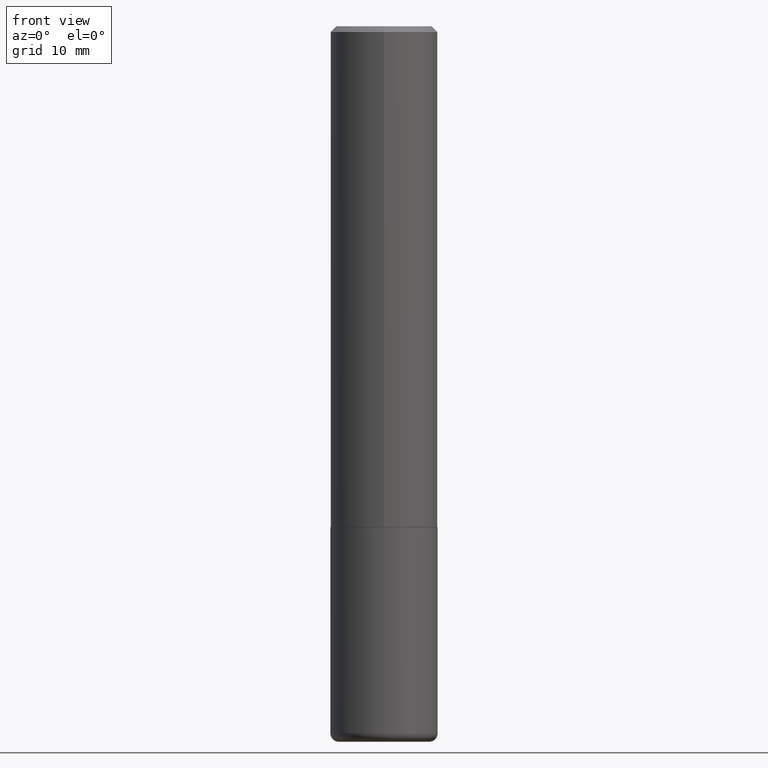
[diagram: clean part render]
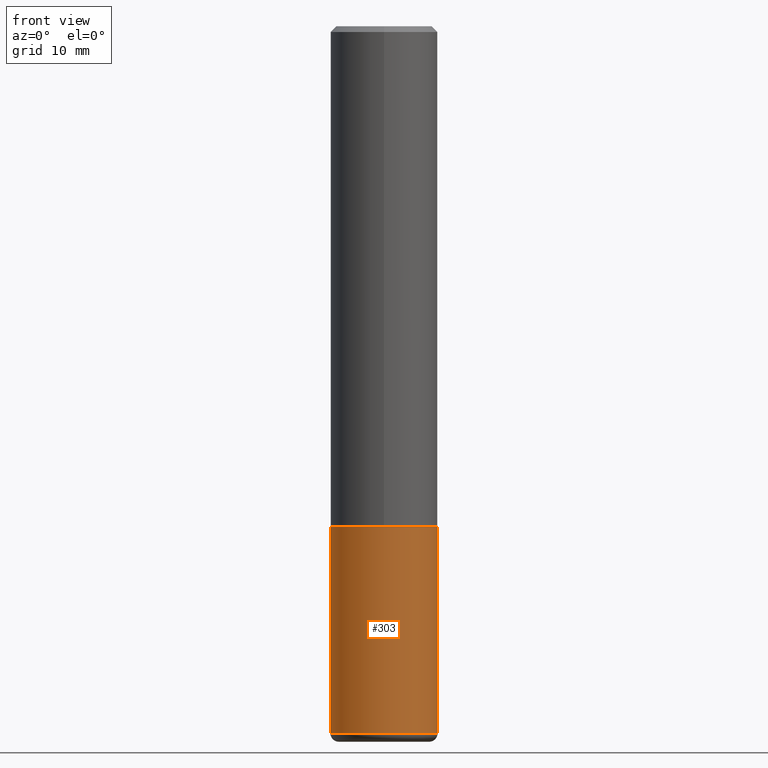
[diagram: same view with one face highlighted and labeled with its STEP entity id]
A machine part, front view. The second image highlights one B-rep face of the part: STEP entity #303.
In plain terms, the highlighted cylindrical surface (partial cylindrical patch) has radius 4.7625 mm, axis along (-0, 0, 1).
Its self-contained STEP definition (entity closure, byte-faithful):
#10 = CARTESIAN_POINT ( 'NONE',  ( 0.1875000000000000555, -9.933264409008746581E-15, -2.470000000000000195 ) ) ;
#17 = DIRECTION ( 'NONE',  ( -2.445468806185136597E-29, 3.491481338843145583E-15, 1.000000000000000000 ) ) ;
#20 = AXIS2_PLACEMENT_3D ( 'NONE', #359, #351, #259 ) ;
#32 = EDGE_CURVE ( 'NONE', #112, #409, #171, .T. ) ;
#39 = AXIS2_PLACEMENT_3D ( 'NONE', #113, #17, #239 ) ;
#44 = ORIENTED_EDGE ( 'NONE', *, *, #32, .F. ) ;
#54 = LINE ( 'NONE', #162, #238 ) ;
#67 = DIRECTION ( 'NONE',  ( -2.445468806185136877E-29, 3.491481338843145188E-15, 1.000000000000000000 ) ) ;
#75 = CARTESIAN_POINT ( 'NONE',  ( 0.000000000000000000, 0.000000000000000000, 0.000000000000000000 ) ) ;
#83 = EDGE_CURVE ( 'NONE', #207, #409, #54, .T. ) ;
#85 = ORIENTED_EDGE ( 'NONE', *, *, #379, .T. ) ;
#88 = VERTEX_POINT ( 'NONE', #290 ) ;
#100 = VECTOR ( 'NONE', #67, 39.37007874015748143 ) ;
#112 = VERTEX_POINT ( 'NONE', #294 ) ;
#113 = CARTESIAN_POINT ( 'NONE',  ( 6.040307951277287977E-29, -8.623958906942569995E-15, -2.470000000000000195 ) ) ;
#144 = CARTESIAN_POINT ( 'NONE',  ( 0.1875000000000000278, -7.419397845041680468E-15, -1.750000000000000222 ) ) ;
#154 = DIRECTION ( 'NONE',  ( -2.445468806185136877E-29, 3.491481338843145188E-15, 1.000000000000000000 ) ) ;
#162 = CARTESIAN_POINT ( 'NONE',  ( 0.1875000000000000555, -1.309305502066175205E-15, 9.142831454617382414E-30 ) ) ;
#171 = CIRCLE ( 'NONE', #20, 0.1875000000000000278 ) ;
#194 = EDGE_LOOP ( 'NONE', ( #248, #85, #279, #44 ) ) ;
#207 = VERTEX_POINT ( 'NONE', #10 ) ;
#211 = DIRECTION ( 'NONE',  ( -2.445468806185136597E-29, 3.491481338843145583E-15, 1.000000000000000000 ) ) ;
#215 = DIRECTION ( 'NONE',  ( 1.000000000000000000, -6.982962677686265922E-15, 4.876176775795935793E-29 ) ) ;
#228 = CIRCLE ( 'NONE', #39, 0.1875000000000000555 ) ;
#238 = VECTOR ( 'NONE', #154, 39.37007874015748143 ) ;
#239 = DIRECTION ( 'NONE',  ( 1.000000000000000000, -6.982962677686265922E-15, 0.000000000000000000 ) ) ;
#245 = EDGE_CURVE ( 'NONE', #88, #112, #368, .T. ) ;
#248 = ORIENTED_EDGE ( 'NONE', *, *, #245, .F. ) ;
#259 = DIRECTION ( 'NONE',  ( 1.000000000000000000, -6.982962677686266711E-15, 0.000000000000000000 ) ) ;
#279 = ORIENTED_EDGE ( 'NONE', *, *, #83, .T. ) ;
#290 = CARTESIAN_POINT ( 'NONE',  ( -0.1875000000000000555, -7.291691277392382147E-15, -2.470000000000000195 ) ) ;
#294 = CARTESIAN_POINT ( 'NONE',  ( -0.1875000000000000278, -6.034757995408849879E-15, -1.750000000000000222 ) ) ;
#300 = CARTESIAN_POINT ( 'NONE',  ( -0.1875000000000000555, 1.332267629550188243E-15, -9.223003294227950793E-30 ) ) ;
#303 = ADVANCED_FACE ( 'NONE', ( #366 ), #332, .T. ) ;
#332 = CYLINDRICAL_SURFACE ( 'NONE', #354, 0.1875000000000000555 ) ;
#351 = DIRECTION ( 'NONE',  ( -2.445468806185136597E-29, 3.491481338843145583E-15, 1.000000000000000000 ) ) ;
#354 = AXIS2_PLACEMENT_3D ( 'NONE', #75, #211, #215 ) ;
#359 = CARTESIAN_POINT ( 'NONE',  ( 4.279570410823989044E-29, -6.110092342975505460E-15, -1.750000000000000222 ) ) ;
#366 = FACE_OUTER_BOUND ( 'NONE', #194, .T. ) ;
#368 = LINE ( 'NONE', #300, #100 ) ;
#379 = EDGE_CURVE ( 'NONE', #88, #207, #228, .T. ) ;
#409 = VERTEX_POINT ( 'NONE', #144 ) ;